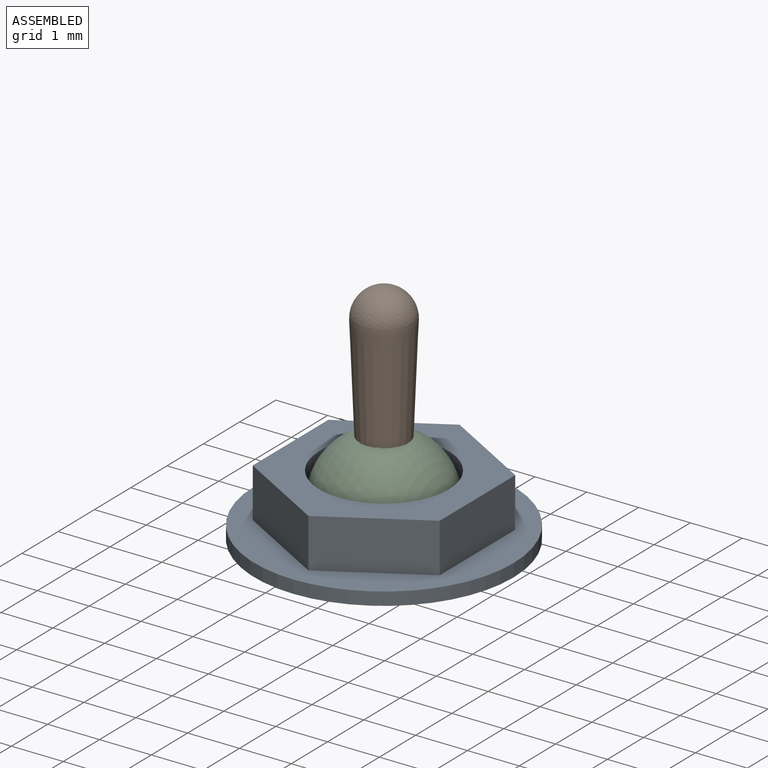
[diagram: assembled view]
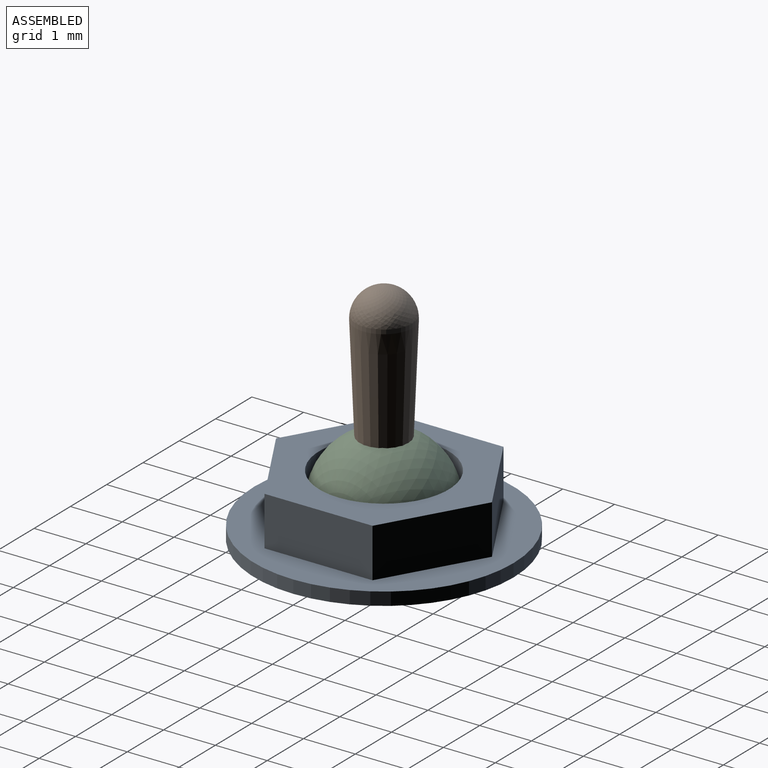
[diagram: assembled view, second angle]
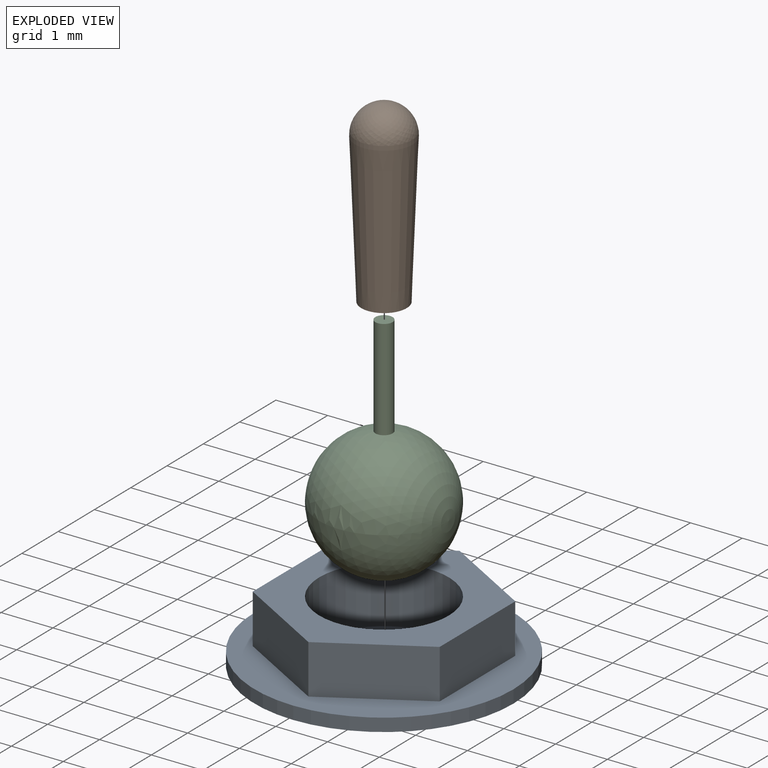
[diagram: exploded view]
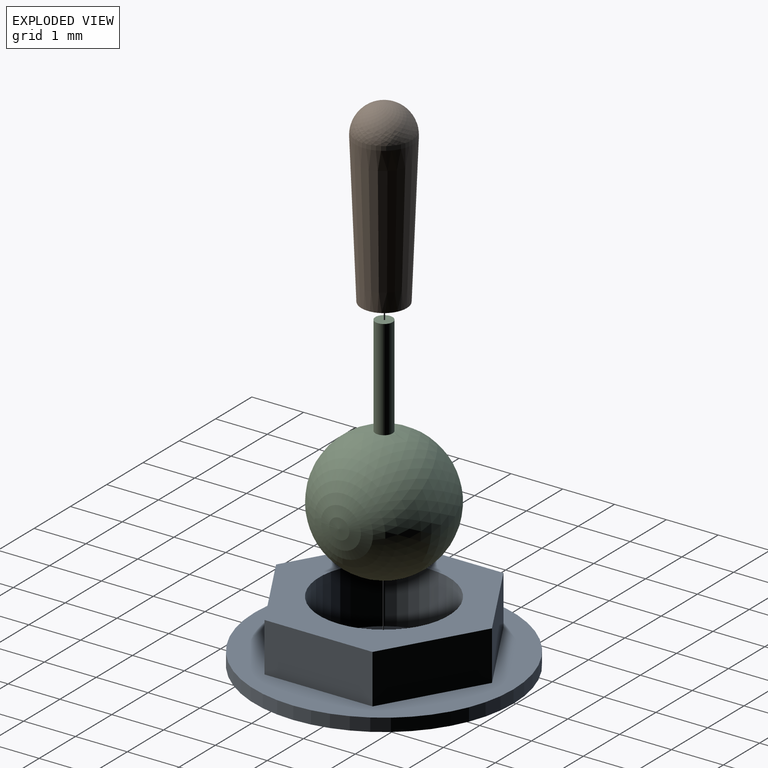
[diagram: exploded view, second angle]
ASSEMBLY  parts=3 mates=2
PART A: 12 faces, bbox 5x5x1.2 mm
  f0: plane 1.8x1.04mm, normal (-0.5,-0.87,0), area 2mm2, adj f1,f5,f7,f10
  f1: plane 1.8x1.04mm, normal (0.5,-0.87,0), area 2mm2, adj f0,f2,f7,f10
  f2: plane 2.08x0.95mm, normal (1,0,0), area 2mm2, adj f1,f3,f7,f10
  f3: plane 1.8x1.04mm, normal (0.5,0.87,0), area 2mm2, adj f2,f4,f7,f10
  f4: plane 1.8x1.04mm, normal (-0.5,0.87,0), area 2mm2, adj f3,f5,f7,f10
  f5: plane 2.08x0.95mm, normal (-1,0,0), area 2mm2, adj f0,f4,f7,f10
  f6: cylinder r=1.25mm len=2.5mm, axis (0,0,-1), area 8.6mm2, adj f7,f11
  f7: plane 4.17x3.61mm, normal (0,0,1), area 6.4mm2, adj f0,f1,f2,f3,f4,f5,f6
  f8: plane 5x5mm, normal (0,0,-1), area 19.6mm2, adj f9
  f9: cylinder r=2.5mm len=5mm, axis (0,0,-1), area 3.9mm2, adj f8,f10
  f10: plane 5x5mm, normal (0,0,1), area 8.4mm2, adj f0,f1,f2,f3,f4,f5,f9
  f11: plane 2.5x2.5mm, normal (0,0,1), area 4.9mm2, adj f6
PART B: 5 faces, bbox 1.1x1.1x3.5 mm
  f0: plane 0.33x0.33mm, normal (0,0,-1), area 0.1mm2, adj f1
  f1: cylinder r=0.17mm len=2.91mm, axis (0,0,-1), area 3mm2, adj f0,f2
  f2: plane 0.88x0.88mm, normal (0,0,-1), area 0.5mm2, adj f1,f3
  f3: cone r=0.55mm half-angle=2.3deg, axis (0,0,1), area 9mm2, adj f2,f4
  f4: revolved ~1.1x1.1mm, area 2mm2, adj f3
PART C: 3 faces, bbox 2.5x2.5x4.4 mm
  f0: sphere r=1.25mm, area 19.5mm2, adj f1
  f1: cylinder r=0.17mm len=1.94mm, axis (0,0,-1), area 2mm2, adj f0,f2
  f2: plane 0.33x0.33mm, normal (0,0,1), area 0.1mm2, adj f1
PLACE A t=(1.25,-0.37,0.9)mm
PLACE B rot(axis=(0,0,-1),90deg) t=(1.25,-0.37,1.42)mm
PLACE C rot(axis=(0,0,-1),90deg) t=(1.25,-0.37,1.55)mm
MATE fastened C.f1 <-> A.f6  axis (0,0,1) through (1.25,-0.37,1.55)mm
MATE fastened B.f1 <-> C.f1  axis (0,0,1) through (1.25,-0.37,4.73)mm
